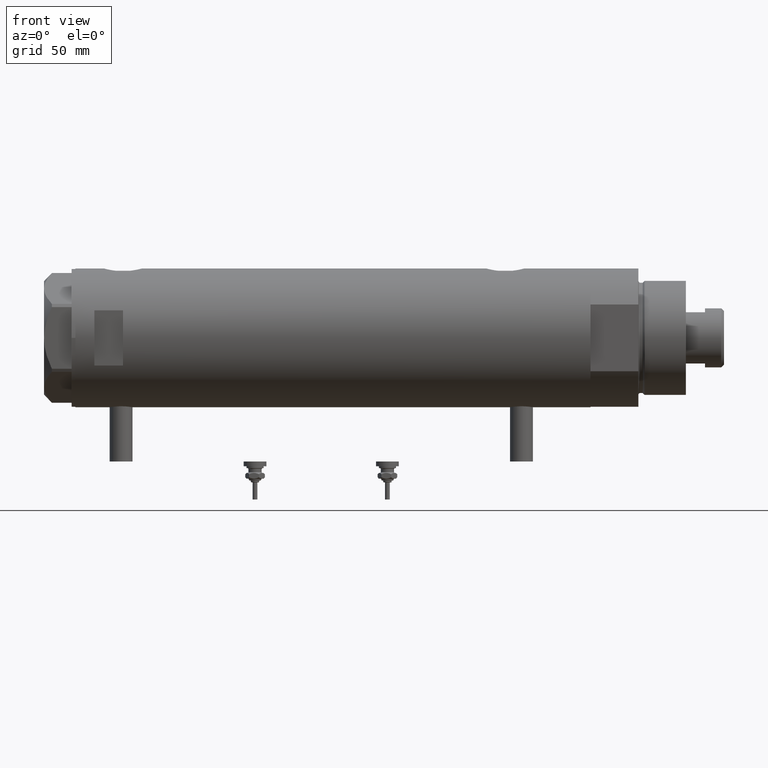
[diagram: clean part render]
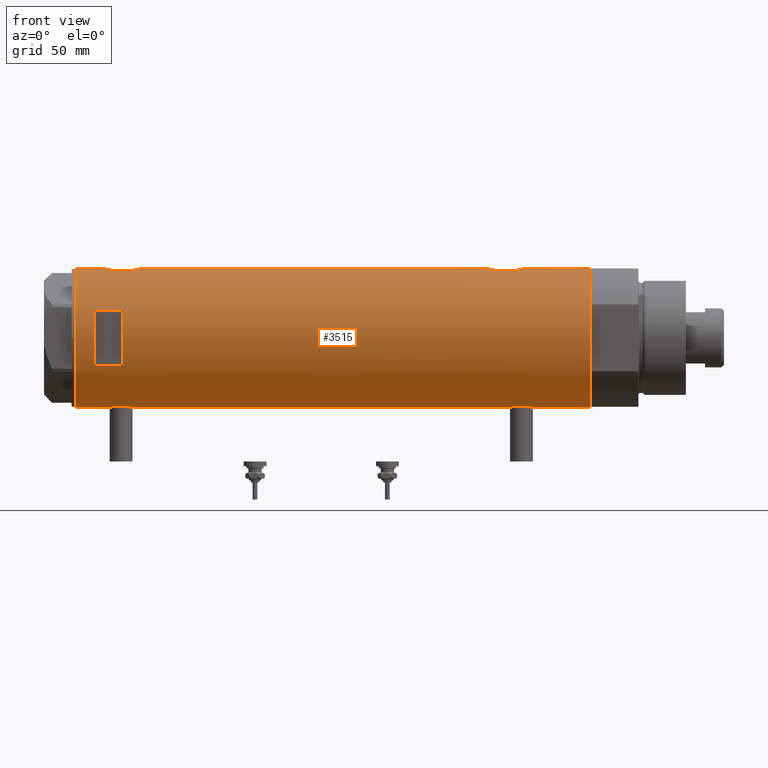
[diagram: same view with one face highlighted and labeled with its STEP entity id]
A machine part, front view. The second image highlights one B-rep face of the part: STEP entity #3515.
In plain terms, the highlighted cylindrical surface (partial cylindrical patch) has radius 36.5 mm, axis along (-1, -0, 0).
Its self-contained STEP definition (entity closure, byte-faithful):
#21 = DIRECTION ( 'NONE',  ( 0.000000000000000000, 0.000000000000000000, 1.000000000000000000 ) ) ;
#28 = CARTESIAN_POINT ( 'NONE',  ( 35.72583162417570435, -7.484316398521980496, -83.94957356280495731 ) ) ;
#29 = VERTEX_POINT ( 'NONE', #5354 ) ;
#84 = CARTESIAN_POINT ( 'NONE',  ( -36.40915499150419521, -2.580495338846545472, -104.7960501335547860 ) ) ;
#106 = ORIENTED_EDGE ( 'NONE', *, *, #3835, .F. ) ;
#107 = VERTEX_POINT ( 'NONE', #4036 ) ;
#108 = CARTESIAN_POINT ( 'NONE',  ( 36.41856252531823657, -2.482507212621166470, -100.2995651284649909 ) ) ;
#113 = CARTESIAN_POINT ( 'NONE',  ( -36.44454782745417276, -2.020757099930494682, -93.18214135579002289 ) ) ;
#117 = B_SPLINE_CURVE_WITH_KNOTS ( 'NONE', 3,
 ( #1401, #2845, #3241, #4687, #4619, #588, #3721, #2410, #3780, #3449, #4885, #256, #4390, #1679, #3006, #3935, #5762, #3042 ),
 .UNSPECIFIED., .F., .F.,
 ( 4, 2, 2, 2, 2, 2, 2, 2, 4 ),
 ( -0.01189883390545606531, -0.008924125429092034240, -0.008180448310001031675, -0.007436771190910029979, -0.005949416952728023983, -0.004462062714546017987, -0.002974708476364010257, -0.001487354238182005128, 1.734723475976807094E-18 ),
 .UNSPECIFIED. ) ;
#135 = CARTESIAN_POINT ( 'NONE',  ( 35.69273631926343882, -7.635692914629149008, -97.06200195651487661 ) ) ;
#139 = CARTESIAN_POINT ( 'NONE',  ( -36.36635911126388265, -3.125815113635437292, -104.5160560040790330 ) ) ;
#171 = CARTESIAN_POINT ( 'NONE',  ( -36.21356728133255842, -4.566014386638764577, -94.82737339235254126 ) ) ;
#228 = LINE ( 'NONE', #2200, #4568 ) ;
#256 = CARTESIAN_POINT ( 'NONE',  ( 36.29527920868844859, -3.886508670267145416, 101.1728372416913970 ) ) ;
#265 = CARTESIAN_POINT ( 'NONE',  ( -36.35061318816141096, -3.303361544904982239, 106.0903595805698245 ) ) ;
#286 = EDGE_CURVE ( 'NONE', #5786, #477, #2375, .T. ) ;
#333 = VERTEX_POINT ( 'NONE', #4878 ) ;
#355 = CARTESIAN_POINT ( 'NONE',  ( -36.26616882068471170, -4.135065845178865551, 116.1041505594009635 ) ) ;
#386 = CARTESIAN_POINT ( 'NONE',  ( -36.19666146462960654, -4.704890678739094945, 107.2657014048921553 ) ) ;
#395 = CARTESIAN_POINT ( 'NONE',  ( 36.18674680775578167, -4.776679548204626258, 119.1889231693124742 ) ) ;
#419 = CARTESIAN_POINT ( 'NONE',  ( 36.34247810649306132, -3.420510937483959513, -81.19013481598273074 ) ) ;
#426 = CARTESIAN_POINT ( 'NONE',  ( 36.00092304812866217, -6.029438422680412302, 118.3930815557365008 ) ) ;
#443 = CARTESIAN_POINT ( 'NONE',  ( -35.98855750525641639, -6.088954600884530777, 109.9756977384983543 ) ) ;
#449 = CARTESIAN_POINT ( 'NONE',  ( 35.29999999999999716, -9.282241108697837362, 114.1202150475476316 ) ) ;
#455 = CARTESIAN_POINT ( 'NONE',  ( 36.34247810649306132, -3.420510937483959513, 119.8098651840172693 ) ) ;
#463 = DIRECTION ( 'NONE',  ( 1.000000000000000000, 0.000000000000000000, 0.000000000000000000 ) ) ;
#470 = CARTESIAN_POINT ( 'NONE',  ( 0.000000000000000000, 0.000000000000000000, -135.4000000000000057 ) ) ;
#471 = VECTOR ( 'NONE', #2833, 1000.000000000000000 ) ;
#472 = VERTEX_POINT ( 'NONE', #1035 ) ;
#477 = VERTEX_POINT ( 'NONE', #2800 ) ;
#502 = CARTESIAN_POINT ( 'NONE',  ( -35.96087392089862789, -6.250243747806517369, -98.69082509223817112 ) ) ;
#528 = CARTESIAN_POINT ( 'NONE',  ( 35.83108131285856501, -6.958268797611358636, -97.78630783372824453 ) ) ;
#557 = CARTESIAN_POINT ( 'NONE',  ( 36.48960339336947101, -1.002724032967601708, -100.5622486597349621 ) ) ;
#563 = CARTESIAN_POINT ( 'NONE',  ( -36.50000000000001421, -0.4136690418839317762, -92.85000000000000853 ) ) ;
#572 = DIRECTION ( 'NONE',  ( 0.000000000000000000, 0.000000000000000000, 1.000000000000000000 ) ) ;
#584 = CARTESIAN_POINT ( 'NONE',  ( 35.79656810172926384, -7.133411935499478496, -97.61254878557674886 ) ) ;
#588 = CARTESIAN_POINT ( 'NONE',  ( 35.79656810172926384, -7.133411935499478496, 103.3874512144232511 ) ) ;
#590 = CARTESIAN_POINT ( 'NONE',  ( -35.96816095843705341, -6.208699946936198977, -99.92496377127785934 ) ) ;
#591 = EDGE_CURVE ( 'NONE', #5507, #1157, #3339, .T. ) ;
#611 = CARTESIAN_POINT ( 'NONE',  ( 36.12792682573228831, -5.214735277442335004, -99.14693117988699100 ) ) ;
#669 = EDGE_CURVE ( 'NONE', #107, #2053, #2174, .T. ) ;
#682 = CARTESIAN_POINT ( 'NONE',  ( -36.36635911126388265, -3.125815113635437292, 105.9839439959209955 ) ) ;
#742 = EDGE_CURVE ( 'NONE', #2053, #5880, #228, .T. ) ;
#791 = CARTESIAN_POINT ( 'NONE',  ( -36.50000000000000000, 1.603939656238031057E-15, -92.84999999999999432 ) ) ;
#808 = DIRECTION ( 'NONE',  ( 1.000000000000000000, 0.000000000000000000, 0.000000000000000000 ) ) ;
#818 = B_SPLINE_CURVE_WITH_KNOTS ( 'NONE', 3,
 ( #5213, #3819, #1522, #3390, #3355, #1108, #2945, #682, #265, #2510, #3519, #386, #2626, #3574, #2209, #4489, #1293, #4002, #443, #1263, #4457, #4535, #1236, #2701, #3126, #4915, #5426, #2157, #5375, #1742, #4085, #4976, #1799, #355, #5831, #2681, #5939, #3972, #4060, #4424, #5860, #3637, #866, #1684 ),
 .UNSPECIFIED., .F., .F.,
 ( 4, 2, 2, 2, 2, 2, 2, 2, 2, 2, 2, 2, 2, 2, 2, 2, 2, 2, 2, 2, 2, 4 ),
 ( 0.01957644481942643136, 0.02079966591703043266, 0.02202288701463443049, 0.02263449756343642941, 0.02324610811223842832, 0.02446932920984242615, 0.02569255030744642398, 0.02691577140505042529, 0.02752738195385242420, 0.02813899250265442659, 0.02936221360025846605, 0.03058543469786250205, 0.03119704524666452178, 0.03180865579546654498, 0.03303187689307057751, 0.03364348744187262152, 0.03425509799067465166, 0.03547831908827869807, 0.03670154018588274447, 0.03731315073468477461, 0.03792476128348679781, 0.03914798238109084422 ),
 .UNSPECIFIED. ) ;
#822 = ORIENTED_EDGE ( 'NONE', *, *, #2388, .T. ) ;
#847 = VERTEX_POINT ( 'NONE', #1312 ) ;
#866 = CARTESIAN_POINT ( 'NONE',  ( -36.50000000000001421, -0.4136690418839317762, 117.6500000000000341 ) ) ;
#878 = CARTESIAN_POINT ( 'NONE',  ( 35.39807338191549491, -8.909271871950329214, 115.0508038273278402 ) ) ;
#928 = CARTESIAN_POINT ( 'NONE',  ( -36.46417279006304568, -1.628689148039109247, -93.06246061306185879 ) ) ;
#956 = CARTESIAN_POINT ( 'NONE',  ( -35.98821803976956346, -6.090959022952117330, -97.68426116850579888 ) ) ;
#961 = CARTESIAN_POINT ( 'NONE',  ( 36.29582892817134621, -3.881628320031159873, -81.37065565465007921 ) ) ;
#964 = B_SPLINE_CURVE_WITH_KNOTS ( 'NONE', 3,
 ( #5150, #5181, #5091, #135, #4590, #584, #528, #2408, #2869, #611, #3810, #3718, #2436, #108, #3238, #557, #4197, #1911 ),
 .UNSPECIFIED., .F., .F.,
 ( 4, 2, 2, 2, 2, 2, 2, 2, 4 ),
 ( -0.01189883390545606531, -0.008924125429092034240, -0.008180448310001031675, -0.007436771190910029979, -0.005949416952728023983, -0.004462062714546017987, -0.002974708476364010257, -0.001487354238182005128, 1.734723475976807094E-18 ),
 .UNSPECIFIED. ) ;
#1000 = CARTESIAN_POINT ( 'NONE',  ( -36.50000000000000000, 4.469960816887838430E-15, -135.4000000000000057 ) ) ;
#1022 = CARTESIAN_POINT ( 'NONE',  ( -36.39558535855674393, -2.764807686268001774, -104.7089411854560979 ) ) ;
#1035 = CARTESIAN_POINT ( 'NONE',  ( 36.50000000000000000, 0.000000000000000000, 100.4000000000000057 ) ) ;
#1059 = DIRECTION ( 'NONE',  ( 0.000000000000000000, 0.000000000000000000, 1.000000000000000000 ) ) ;
#1072 = CARTESIAN_POINT ( 'NONE',  ( -14.49137674618942739, -33.50000000000000000, -135.4000000000000057 ) ) ;
#1074 = ORIENTED_EDGE ( 'NONE', *, *, #2399, .F. ) ;
#1108 = CARTESIAN_POINT ( 'NONE',  ( -36.40915499150419521, -2.580495338846545472, 105.7039498664452566 ) ) ;
#1157 = VERTEX_POINT ( 'NONE', #2195 ) ;
#1171 = VERTEX_POINT ( 'NONE', #2527 ) ;
#1176 = DIRECTION ( 'NONE',  ( 0.000000000000000000, 0.000000000000000000, 1.000000000000000000 ) ) ;
#1230 = VECTOR ( 'NONE', #3349, 1000.000000000000000 ) ;
#1236 = CARTESIAN_POINT ( 'NONE',  ( -35.96794010939611752, -6.209972807992079069, 112.2155554899135836 ) ) ;
#1263 = CARTESIAN_POINT ( 'NONE',  ( -35.96816095843705341, -6.208699946936198977, 110.5750362287220838 ) ) ;
#1279 = CARTESIAN_POINT ( 'NONE',  ( 36.50000000000000711, -0.4962708696651116913, 120.3999999999999915 ) ) ;
#1293 = CARTESIAN_POINT ( 'NONE',  ( -36.01675918113430441, -5.920026275461277798, 109.3856044348210759 ) ) ;
#1312 = CARTESIAN_POINT ( 'NONE',  ( -36.50000000000000000, 1.603939656238031057E-15, 117.6500000000000057 ) ) ;
#1332 = CARTESIAN_POINT ( 'NONE',  ( 36.48988302519020266, -0.9927202255321166957, 120.3632698941130172 ) ) ;
#1356 = ORIENTED_EDGE ( 'NONE', *, *, #3395, .F. ) ;
#1363 = CARTESIAN_POINT ( 'NONE',  ( 36.44931971524465553, -1.985988150549293341, 120.2136686053176220 ) ) ;
#1387 = LINE ( 'NONE', #2768, #3194 ) ;
#1401 = CARTESIAN_POINT ( 'NONE',  ( 35.29999999999999716, -9.282241108697837362, 106.6797849524523656 ) ) ;
#1406 = CARTESIAN_POINT ( 'NONE',  ( -36.09582946723050867, -5.421573071064194060, -102.2360827837048731 ) ) ;
#1435 = CARTESIAN_POINT ( 'NONE',  ( -36.26616882068471170, -4.135065845178865551, -94.39584944059907912 ) ) ;
#1475 = ORIENTED_EDGE ( 'NONE', *, *, #669, .F. ) ;
#1479 = VERTEX_POINT ( 'NONE', #1000 ) ;
#1482 = EDGE_CURVE ( 'NONE', #4134, #1740, #1507, .T. ) ;
#1494 = CARTESIAN_POINT ( 'NONE',  ( -36.06543684817881257, -5.617774235967367247, -96.33045552028301017 ) ) ;
#1507 = LINE ( 'NONE', #4729, #471 ) ;
#1522 = CARTESIAN_POINT ( 'NONE',  ( -36.49315367594273596, -0.8144497809045447845, 105.1896021444524507 ) ) ;
#1573 = LINE ( 'NONE', #2000, #5465 ) ;
#1676 = DIRECTION ( 'NONE',  ( 1.000000000000000000, 0.000000000000000000, 0.000000000000000000 ) ) ;
#1679 = CARTESIAN_POINT ( 'NONE',  ( 36.41856252531823657, -2.482507212621166470, 100.7004348715349380 ) ) ;
#1684 = CARTESIAN_POINT ( 'NONE',  ( -36.50000000000000000, 1.603939656238031057E-15, 117.6500000000000057 ) ) ;
#1718 = EDGE_LOOP ( 'NONE', ( #3052, #5144, #1074, #3863 ) ) ;
#1729 = CARTESIAN_POINT ( 'NONE',  ( 36.50000000000000000, 4.344614706140975428E-19, 120.3999999999999915 ) ) ;
#1740 = VERTEX_POINT ( 'NONE', #449 ) ;
#1742 = CARTESIAN_POINT ( 'NONE',  ( -36.14410773716529235, -5.085921866747754372, 115.0383587842047035 ) ) ;
#1771 = CARTESIAN_POINT ( 'NONE',  ( 36.50000000000000000, 0.000000000000000000, -135.4000000000000057 ) ) ;
#1773 = CARTESIAN_POINT ( 'NONE',  ( 35.39807338191549491, -8.909271871950329214, -85.94919617267213141 ) ) ;
#1782 = CARTESIAN_POINT ( 'NONE',  ( 35.29999999999999716, -9.282241108697837362, -94.32021504754762020 ) ) ;
#1799 = CARTESIAN_POINT ( 'NONE',  ( -36.21356728133255842, -4.566014386638764577, 115.6726266076474587 ) ) ;
#1911 = CARTESIAN_POINT ( 'NONE',  ( 36.50000000000000000, 0.000000000000000000, -100.5999999999999801 ) ) ;
#1932 = CARTESIAN_POINT ( 'NONE',  ( -36.50000000000000000, 4.469960816887838430E-15, -135.4000000000000057 ) ) ;
#1950 = CARTESIAN_POINT ( 'NONE',  ( -35.96794010939611752, -6.209972807992079069, -98.28444451008645899 ) ) ;
#1973 = ORIENTED_EDGE ( 'NONE', *, *, #5110, .F. ) ;
#1988 = CIRCLE ( 'NONE', #2110, 36.50000000000000000 ) ;
#2000 = CARTESIAN_POINT ( 'NONE',  ( 36.50000000000000000, 0.000000000000000000, -135.4000000000000057 ) ) ;
#2041 = VECTOR ( 'NONE', #2899, 1000.000000000000000 ) ;
#2053 = VERTEX_POINT ( 'NONE', #791 ) ;
#2077 = VECTOR ( 'NONE', #2109, 1000.000000000000000 ) ;
#2101 = ORIENTED_EDGE ( 'NONE', *, *, #2413, .T. ) ;
#2109 = DIRECTION ( 'NONE',  ( 0.000000000000000000, 0.000000000000000000, 1.000000000000000000 ) ) ;
#2110 = AXIS2_PLACEMENT_3D ( 'NONE', #5725, #2976, #1676 ) ;
#2157 = CARTESIAN_POINT ( 'NONE',  ( -36.06543684817881257, -5.617774235967367247, 114.1695444797170182 ) ) ;
#2174 = B_SPLINE_CURVE_WITH_KNOTS ( 'NONE', 3,
 ( #4268, #2445, #3816, #3300, #5550, #84, #1022, #139, #5156, #3724, #3786, #2849, #2761, #1406, #2874, #3243, #5185, #4691, #5096, #590, #4596, #502, #1950, #956, #4203, #2414, #5127, #1494, #2321, #5666, #4624, #4720, #171, #1435, #3208, #5065, #4143, #5582, #113, #928, #3268, #4657, #563, #2391 ),
 .UNSPECIFIED., .F., .F.,
 ( 4, 2, 2, 2, 2, 2, 2, 2, 2, 2, 2, 2, 2, 2, 2, 2, 2, 2, 2, 2, 2, 4 ),
 ( 0.01957644481942643136, 0.02079966591703043266, 0.02202288701463443049, 0.02263449756343642941, 0.02324610811223842832, 0.02446932920984242615, 0.02569255030744642398, 0.02691577140505042529, 0.02752738195385242420, 0.02813899250265442659, 0.02936221360025846605, 0.03058543469786250205, 0.03119704524666452178, 0.03180865579546654498, 0.03303187689307057751, 0.03364348744187262152, 0.03425509799067465166, 0.03547831908827869807, 0.03670154018588274447, 0.03731315073468477461, 0.03792476128348679781, 0.03914798238109084422 ),
 .UNSPECIFIED. ) ;
#2181 = VERTEX_POINT ( 'NONE', #5398 ) ;
#2195 = CARTESIAN_POINT ( 'NONE',  ( 36.50000000000000000, 0.000000000000000000, 135.4000000000000057 ) ) ;
#2199 = CARTESIAN_POINT ( 'NONE',  ( 36.50000000000000000, 4.344614706140975428E-19, -80.59999999999999432 ) ) ;
#2200 = CARTESIAN_POINT ( 'NONE',  ( -36.50000000000000000, 4.469960816887838430E-15, -135.4000000000000057 ) ) ;
#2209 = CARTESIAN_POINT ( 'NONE',  ( -36.06605150775667568, -5.613853192123348101, 108.6223431172745961 ) ) ;
#2215 = CARTESIAN_POINT ( 'NONE',  ( 35.52323553852023963, -8.411295122831250026, -85.10247607048908947 ) ) ;
#2223 = DIRECTION ( 'NONE',  ( 0.000000000000000000, 0.000000000000000000, 1.000000000000000000 ) ) ;
#2238 = CARTESIAN_POINT ( 'NONE',  ( 36.18674680775578167, -4.776679548204626258, -81.81107683068751157 ) ) ;
#2242 = CARTESIAN_POINT ( 'NONE',  ( 35.93373217836897737, -6.415110096330620237, 118.0870426635508892 ) ) ;
#2271 = VECTOR ( 'NONE', #1059, 1000.000000000000000 ) ;
#2294 = CARTESIAN_POINT ( 'NONE',  ( 35.93373217836897737, -6.415110096330620237, -82.91295733644905397 ) ) ;
#2321 = CARTESIAN_POINT ( 'NONE',  ( -36.09514898390870030, -5.426114745500164815, -95.97161347053859970 ) ) ;
#2334 = AXIS2_PLACEMENT_3D ( 'NONE', #3642, #4928, #808 ) ;
#2344 = EDGE_CURVE ( 'NONE', #4571, #3491, #964, .T. ) ;
#2371 = DIRECTION ( 'NONE',  ( 0.000000000000000000, 0.000000000000000000, 1.000000000000000000 ) ) ;
#2375 = LINE ( 'NONE', #4190, #2077 ) ;
#2388 = EDGE_CURVE ( 'NONE', #4571, #1171, #3777, .T. ) ;
#2391 = CARTESIAN_POINT ( 'NONE',  ( -36.50000000000000000, 1.603939656238031057E-15, -92.84999999999999432 ) ) ;
#2399 = EDGE_CURVE ( 'NONE', #477, #333, #1988, .T. ) ;
#2408 = CARTESIAN_POINT ( 'NONE',  ( 35.93363298843768661, -6.415574104180976178, -98.28651472888890339 ) ) ;
#2410 = CARTESIAN_POINT ( 'NONE',  ( 35.93363298843768661, -6.415574104180976178, 102.7134852711111108 ) ) ;
#2413 = EDGE_CURVE ( 'NONE', #4793, #472, #1573, .T. ) ;
#2414 = CARTESIAN_POINT ( 'NONE',  ( -36.01639592019625979, -5.922235714778421034, -97.09203197573086186 ) ) ;
#2432 = AXIS2_PLACEMENT_3D ( 'NONE', #3600, #2678, #463 ) ;
#2436 = CARTESIAN_POINT ( 'NONE',  ( 36.34184199234172041, -3.427106516421255744, -100.0074091368003337 ) ) ;
#2445 = CARTESIAN_POINT ( 'NONE',  ( -36.49999999999999289, -0.4082012689449562859, -105.3499999999999943 ) ) ;
#2510 = CARTESIAN_POINT ( 'NONE',  ( -36.30176144752229561, -3.814344296723636951, 106.4319829804974518 ) ) ;
#2527 = CARTESIAN_POINT ( 'NONE',  ( 35.29999999999999716, -9.282241108697837362, -86.87978495245235422 ) ) ;
#2564 = DIRECTION ( 'NONE',  ( 0.000000000000000000, 0.000000000000000000, 1.000000000000000000 ) ) ;
#2626 = CARTESIAN_POINT ( 'NONE',  ( -36.16096637594732499, -4.968588355849258953, 107.5866550718223920 ) ) ;
#2636 = B_SPLINE_CURVE_WITH_KNOTS ( 'NONE', 3,
 ( #5070, #4570, #5433, #3135, #3699, #419, #961, #5035, #2238, #3183, #4069, #5916, #2294, #4496, #28, #2215, #1773, #3612 ),
 .UNSPECIFIED., .F., .F.,
 ( 4, 2, 2, 2, 2, 2, 2, 2, 4 ),
 ( 0.01190956515753145012, 0.01339852714138290227, 0.01488748912523435441, 0.01637645110908580656, 0.01712093210101153090, 0.01786541309293725871, 0.01935437507678870739, 0.02084333706064015260, 0.02382126102834301526 ),
 .UNSPECIFIED. ) ;
#2649 = AXIS2_PLACEMENT_3D ( 'NONE', #470, #21, #3019 ) ;
#2655 = CYLINDRICAL_SURFACE ( 'NONE', #2432, 36.50000000000000000 ) ;
#2657 = ORIENTED_EDGE ( 'NONE', *, *, #5926, .T. ) ;
#2678 = DIRECTION ( 'NONE',  ( 0.000000000000000000, 0.000000000000000000, 1.000000000000000000 ) ) ;
#2681 = CARTESIAN_POINT ( 'NONE',  ( -36.36656776002988778, -3.137002187003158582, 116.8213640927363315 ) ) ;
#2688 = CARTESIAN_POINT ( 'NONE',  ( 36.21540437201188922, -4.554727782332258279, 119.3059762908862353 ) ) ;
#2701 = CARTESIAN_POINT ( 'NONE',  ( -35.98821803976956346, -6.090959022952117330, 112.8157388314941869 ) ) ;
#2715 = CARTESIAN_POINT ( 'NONE',  ( 36.50000000000000000, 0.000000000000000000, -135.4000000000000057 ) ) ;
#2761 = CARTESIAN_POINT ( 'NONE',  ( -36.16096637594732499, -4.968588355849258953, -102.9133449281775938 ) ) ;
#2768 = CARTESIAN_POINT ( 'NONE',  ( -36.50000000000000000, 4.469960816887838430E-15, -135.4000000000000057 ) ) ;
#2800 = CARTESIAN_POINT ( 'NONE',  ( 14.49137674618942739, -33.50000000000000000, 125.3999999999999773 ) ) ;
#2833 = DIRECTION ( 'NONE',  ( 0.000000000000000000, 0.000000000000000000, 1.000000000000000000 ) ) ;
#2845 = CARTESIAN_POINT ( 'NONE',  ( 35.39794035667548400, -8.909777761736840773, 105.7504584091054767 ) ) ;
#2849 = CARTESIAN_POINT ( 'NONE',  ( -36.19666146462960654, -4.704890678739094945, -103.2342985951078447 ) ) ;
#2869 = CARTESIAN_POINT ( 'NONE',  ( 36.00068527486601511, -6.030855700422090848, -98.59201327127351533 ) ) ;
#2874 = CARTESIAN_POINT ( 'NONE',  ( -36.06605150775667568, -5.613853192123348101, -101.8776568827254465 ) ) ;
#2899 = DIRECTION ( 'NONE',  ( -0.000000000000000000, -0.000000000000000000, -1.000000000000000000 ) ) ;
#2937 = CARTESIAN_POINT ( 'NONE',  ( 36.50000000000000000, 0.000000000000000000, -100.5999999999999801 ) ) ;
#2945 = CARTESIAN_POINT ( 'NONE',  ( -36.39558535855674393, -2.764807686268001774, 105.7910588145438879 ) ) ;
#2976 = DIRECTION ( 'NONE',  ( -0.000000000000000000, 0.000000000000000000, -1.000000000000000000 ) ) ;
#2980 = FACE_OUTER_BOUND ( 'NONE', #4004, .T. ) ;
#3006 = CARTESIAN_POINT ( 'NONE',  ( 36.44881677724178104, -1.995085670027227032, 100.5881965463053263 ) ) ;
#3019 = DIRECTION ( 'NONE',  ( 1.000000000000000000, 0.000000000000000000, 0.000000000000000000 ) ) ;
#3042 = CARTESIAN_POINT ( 'NONE',  ( 36.50000000000000000, 0.000000000000000000, 100.4000000000000057 ) ) ;
#3052 = ORIENTED_EDGE ( 'NONE', *, *, #3999, .F. ) ;
#3074 = CARTESIAN_POINT ( 'NONE',  ( -36.50000000000000000, 4.469960493350315609E-15, 105.1499999999999915 ) ) ;
#3079 = EDGE_CURVE ( 'NONE', #4793, #1171, #2636, .T. ) ;
#3112 = CARTESIAN_POINT ( 'NONE',  ( 36.29582892817134621, -3.881628320031159873, 119.6293443453498782 ) ) ;
#3126 = CARTESIAN_POINT ( 'NONE',  ( -35.99659093586380010, -6.041447834568799635, 113.0142241201482420 ) ) ;
#3135 = CARTESIAN_POINT ( 'NONE',  ( 36.44931971524465553, -1.985988150549293341, -80.78633139468232116 ) ) ;
#3162 = CARTESIAN_POINT ( 'NONE',  ( 35.72583162417570435, -7.484316398521980496, 117.0504264371949716 ) ) ;
#3183 = CARTESIAN_POINT ( 'NONE',  ( 36.12724769814495573, -5.207618053557754756, -82.05935879511534381 ) ) ;
#3194 = VECTOR ( 'NONE', #1176, 1000.000000000000000 ) ;
#3208 = CARTESIAN_POINT ( 'NONE',  ( -36.30107494031872051, -3.820993528321233068, -94.13693846463692694 ) ) ;
#3238 = CARTESIAN_POINT ( 'NONE',  ( 36.44881677724178104, -1.995085670027227032, -100.4118034536946169 ) ) ;
#3241 = CARTESIAN_POINT ( 'NONE',  ( 35.52320828895289395, -8.411622242316134646, 104.9022713405538667 ) ) ;
#3243 = CARTESIAN_POINT ( 'NONE',  ( -36.02823773219768810, -5.849994928883552880, -101.3095510148563960 ) ) ;
#3268 = CARTESIAN_POINT ( 'NONE',  ( -36.47262891311153510, -1.427622242603855396, -93.01175370788300256 ) ) ;
#3282 = AXIS2_PLACEMENT_3D ( 'NONE', #4698, #572, #3792 ) ;
#3300 = CARTESIAN_POINT ( 'NONE',  ( -36.46614432713124643, -1.622933015999963313, -105.1496659738684798 ) ) ;
#3339 = LINE ( 'NONE', #5196, #2271 ) ;
#3349 = DIRECTION ( 'NONE',  ( 0.000000000000000000, 0.000000000000000000, 1.000000000000000000 ) ) ;
#3355 = CARTESIAN_POINT ( 'NONE',  ( -36.44621655743049615, -2.016281777336074832, 105.4701702330088438 ) ) ;
#3390 = CARTESIAN_POINT ( 'NONE',  ( -36.46614432713124643, -1.622933015999963313, 105.3503340261315202 ) ) ;
#3395 = EDGE_CURVE ( 'NONE', #4134, #472, #117, .T. ) ;
#3449 = CARTESIAN_POINT ( 'NONE',  ( 36.12792682573228831, -5.214735277442335004, 101.8530688201130090 ) ) ;
#3491 = VERTEX_POINT ( 'NONE', #2937 ) ;
#3515 = ADVANCED_FACE ( 'NONE', ( #2980, #4819 ), #2655, .T. ) ;
#3519 = CARTESIAN_POINT ( 'NONE',  ( -36.26692673949090562, -4.128477002029503851, 106.6900001256783526 ) ) ;
#3574 = CARTESIAN_POINT ( 'NONE',  ( -36.09582946723050867, -5.421573071064194060, 108.2639172162951553 ) ) ;
#3590 = CARTESIAN_POINT ( 'NONE',  ( 36.12724769814495573, -5.207618053557754756, 118.9406412048846846 ) ) ;
#3600 = CARTESIAN_POINT ( 'NONE',  ( 0.000000000000000000, 0.000000000000000000, -135.4000000000000057 ) ) ;
#3612 = CARTESIAN_POINT ( 'NONE',  ( 35.29999999999999716, -9.282241108697837362, -86.87978495245235422 ) ) ;
#3626 = ORIENTED_EDGE ( 'NONE', *, *, #5329, .F. ) ;
#3637 = CARTESIAN_POINT ( 'NONE',  ( -36.49297138689434661, -0.8222528563518530786, 117.6093311205343781 ) ) ;
#3642 = CARTESIAN_POINT ( 'NONE',  ( 0.000000000000000000, 0.000000000000000000, 135.4000000000000057 ) ) ;
#3699 = CARTESIAN_POINT ( 'NONE',  ( 36.41918031349423757, -2.473644131148923009, -80.89811654536808305 ) ) ;
#3718 = CARTESIAN_POINT ( 'NONE',  ( 36.29527920868844859, -3.886508670267145416, -99.82716275830860297 ) ) ;
#3721 = CARTESIAN_POINT ( 'NONE',  ( 35.83108131285856501, -6.958268797611358636, 103.2136921662717697 ) ) ;
#3724 = CARTESIAN_POINT ( 'NONE',  ( -36.30176144752229561, -3.814344296723636951, -104.0680170195025624 ) ) ;
#3777 = LINE ( 'NONE', #4714, #1230 ) ;
#3780 = CARTESIAN_POINT ( 'NONE',  ( 36.00068527486601511, -6.030855700422090848, 102.4079867287264705 ) ) ;
#3786 = CARTESIAN_POINT ( 'NONE',  ( -36.26692673949090562, -4.128477002029503851, -103.8099998743216474 ) ) ;
#3792 = DIRECTION ( 'NONE',  ( -1.000000000000000000, 0.000000000000000000, 0.000000000000000000 ) ) ;
#3802 = EDGE_CURVE ( 'NONE', #5085, #3491, #5912, .T. ) ;
#3810 = CARTESIAN_POINT ( 'NONE',  ( 36.18850502651835654, -4.779575967213809840, -99.39779152890149305 ) ) ;
#3816 = CARTESIAN_POINT ( 'NONE',  ( -36.49315367594273596, -0.8144497809045447845, -105.3103978555474924 ) ) ;
#3819 = CARTESIAN_POINT ( 'NONE',  ( -36.49999999999999289, -0.4082012689449562859, 105.1500000000000057 ) ) ;
#3835 = EDGE_CURVE ( 'NONE', #1479, #107, #4310, .T. ) ;
#3847 = ORIENTED_EDGE ( 'NONE', *, *, #1482, .T. ) ;
#3863 = ORIENTED_EDGE ( 'NONE', *, *, #286, .F. ) ;
#3935 = CARTESIAN_POINT ( 'NONE',  ( 36.48960339336947101, -1.002724032967601708, 100.4377513402650379 ) ) ;
#3972 = CARTESIAN_POINT ( 'NONE',  ( -36.43335814606993495, -2.212659578761325463, 117.2487639916951139 ) ) ;
#3999 = EDGE_CURVE ( 'NONE', #29, #5786, #4841, .T. ) ;
#4002 = CARTESIAN_POINT ( 'NONE',  ( -35.99695583620881933, -6.039273428153905776, 109.7777555501224214 ) ) ;
#4004 = EDGE_LOOP ( 'NONE', ( #106, #2657, #4791, #4820, #822, #5857, #2101, #1356, #3847, #1973, #4195, #5291, #3626, #5723, #4255, #1475 ) ) ;
#4036 = CARTESIAN_POINT ( 'NONE',  ( -36.50000000000000000, 4.469960493350315609E-15, -105.3499999999999943 ) ) ;
#4060 = CARTESIAN_POINT ( 'NONE',  ( -36.44454782745417276, -2.020757099930494682, 117.3178586442099913 ) ) ;
#4069 = CARTESIAN_POINT ( 'NONE',  ( 36.09633718678917802, -5.417295330713078449, -82.19085132654787174 ) ) ;
#4085 = CARTESIAN_POINT ( 'NONE',  ( -36.16125812922425098, -4.962923794285024393, 115.2044608591076269 ) ) ;
#4089 = DIRECTION ( 'NONE',  ( 0.000000000000000000, 0.000000000000000000, 1.000000000000000000 ) ) ;
#4134 = VERTEX_POINT ( 'NONE', #4984 ) ;
#4143 = CARTESIAN_POINT ( 'NONE',  ( -36.39621039793029666, -2.776267550998806843, -93.48569246893222839 ) ) ;
#4165 = EDGE_CURVE ( 'NONE', #2181, #1157, #5512, .T. ) ;
#4190 = CARTESIAN_POINT ( 'NONE',  ( 14.49137674618942739, -33.50000000000000000, -135.4000000000000057 ) ) ;
#4195 = ORIENTED_EDGE ( 'NONE', *, *, #591, .T. ) ;
#4197 = CARTESIAN_POINT ( 'NONE',  ( 36.50000000000000711, -0.5031001875915692700, -100.5999999999999943 ) ) ;
#4203 = CARTESIAN_POINT ( 'NONE',  ( -35.99659093586380010, -6.041447834568799635, -97.48577587985174375 ) ) ;
#4255 = ORIENTED_EDGE ( 'NONE', *, *, #742, .F. ) ;
#4268 = CARTESIAN_POINT ( 'NONE',  ( -36.50000000000000000, 4.469960493350315609E-15, -105.3499999999999943 ) ) ;
#4310 = LINE ( 'NONE', #1932, #5415 ) ;
#4390 = CARTESIAN_POINT ( 'NONE',  ( 36.34184199234172041, -3.427106516421255744, 100.9925908631996663 ) ) ;
#4424 = CARTESIAN_POINT ( 'NONE',  ( -36.46417279006304568, -1.628689148039109247, 117.4375393869382123 ) ) ;
#4450 = EDGE_CURVE ( 'NONE', #333, #29, #5206, .T. ) ;
#4457 = CARTESIAN_POINT ( 'NONE',  ( -35.96095902952617251, -6.249754054240900913, 110.9834123457953012 ) ) ;
#4489 = CARTESIAN_POINT ( 'NONE',  ( -36.02823773219768810, -5.849994928883552880, 109.1904489851435613 ) ) ;
#4496 = CARTESIAN_POINT ( 'NONE',  ( 35.79638309643555516, -7.141827709208434349, -83.58298073030449871 ) ) ;
#4501 = CARTESIAN_POINT ( 'NONE',  ( 35.29999999999999716, -9.282241108697837362, 114.1202150475476316 ) ) ;
#4521 = CARTESIAN_POINT ( 'NONE',  ( 36.09633718678917802, -5.417295330713078449, 118.8091486734521141 ) ) ;
#4535 = CARTESIAN_POINT ( 'NONE',  ( -35.96087392089862789, -6.250243747806517369, 111.8091749077618289 ) ) ;
#4540 = CARTESIAN_POINT ( 'NONE',  ( 36.50000000000000000, 4.344614706140975428E-19, 120.3999999999999915 ) ) ;
#4568 = VECTOR ( 'NONE', #2223, 1000.000000000000000 ) ;
#4570 = CARTESIAN_POINT ( 'NONE',  ( 36.50000000000000711, -0.4962708696651116913, -80.60000000000000853 ) ) ;
#4571 = VERTEX_POINT ( 'NONE', #1782 ) ;
#4578 = CARTESIAN_POINT ( 'NONE',  ( 35.79638309643555516, -7.141827709208434349, 117.4170192696954445 ) ) ;
#4590 = CARTESIAN_POINT ( 'NONE',  ( 35.72742963626381396, -7.471989379615407323, -97.25062260412774151 ) ) ;
#4596 = CARTESIAN_POINT ( 'NONE',  ( -35.96095902952617251, -6.249754054240900913, -99.51658765420468455 ) ) ;
#4619 = CARTESIAN_POINT ( 'NONE',  ( 35.72742963626381396, -7.471989379615407323, 103.7493773958722585 ) ) ;
#4624 = CARTESIAN_POINT ( 'NONE',  ( -36.16125812922425098, -4.962923794285024393, -95.29553914089241573 ) ) ;
#4657 = CARTESIAN_POINT ( 'NONE',  ( -36.49297138689434661, -0.8222528563518530786, -92.89066887946567874 ) ) ;
#4687 = CARTESIAN_POINT ( 'NONE',  ( 35.69273631926343882, -7.635692914629149008, 103.9379980434851234 ) ) ;
#4691 = CARTESIAN_POINT ( 'NONE',  ( -35.99695583620881933, -6.039273428153905776, -100.7222444498775502 ) ) ;
#4698 = CARTESIAN_POINT ( 'NONE',  ( 0.000000000000000000, 0.000000000000000000, 110.3999999999999773 ) ) ;
#4714 = CARTESIAN_POINT ( 'NONE',  ( 35.29999999999999716, -9.282241108697837362, -135.4000000000000057 ) ) ;
#4720 = CARTESIAN_POINT ( 'NONE',  ( -36.19599073318030236, -4.702920041824403263, -94.97846168323421523 ) ) ;
#4729 = CARTESIAN_POINT ( 'NONE',  ( 35.29999999999999716, -9.282241108697837362, -135.4000000000000057 ) ) ;
#4791 = ORIENTED_EDGE ( 'NONE', *, *, #3802, .T. ) ;
#4793 = VERTEX_POINT ( 'NONE', #2199 ) ;
#4819 = FACE_BOUND ( 'NONE', #1718, .T. ) ;
#4820 = ORIENTED_EDGE ( 'NONE', *, *, #2344, .F. ) ;
#4841 = CIRCLE ( 'NONE', #3282, 36.50000000000000000 ) ;
#4878 = CARTESIAN_POINT ( 'NONE',  ( -14.49137674618942739, -33.50000000000000000, 125.3999999999999773 ) ) ;
#4885 = CARTESIAN_POINT ( 'NONE',  ( 36.18850502651835654, -4.779575967213809840, 101.6022084710984501 ) ) ;
#4915 = CARTESIAN_POINT ( 'NONE',  ( -36.01639592019625979, -5.922235714778421034, 113.4079680242691239 ) ) ;
#4928 = DIRECTION ( 'NONE',  ( 0.000000000000000000, 0.000000000000000000, 1.000000000000000000 ) ) ;
#4976 = CARTESIAN_POINT ( 'NONE',  ( -36.19599073318030236, -4.702920041824403263, 115.5215383167658132 ) ) ;
#4984 = CARTESIAN_POINT ( 'NONE',  ( 35.29999999999999716, -9.282241108697837362, 106.6797849524523656 ) ) ;
#5035 = CARTESIAN_POINT ( 'NONE',  ( 36.21540437201188922, -4.554727782332258279, -81.69402370911372202 ) ) ;
#5045 = CIRCLE ( 'NONE', #2649, 36.50000000000000000 ) ;
#5065 = CARTESIAN_POINT ( 'NONE',  ( -36.36656776002988778, -3.137002187003158582, -93.67863590726369694 ) ) ;
#5070 = CARTESIAN_POINT ( 'NONE',  ( 36.50000000000000000, 4.344614706140975428E-19, -80.59999999999999432 ) ) ;
#5085 = VERTEX_POINT ( 'NONE', #2715 ) ;
#5091 = CARTESIAN_POINT ( 'NONE',  ( 35.52320828895289395, -8.411622242316134646, -96.09772865944610487 ) ) ;
#5096 = CARTESIAN_POINT ( 'NONE',  ( -35.98855750525641639, -6.088954600884530777, -100.5243022615016883 ) ) ;
#5110 = EDGE_CURVE ( 'NONE', #5507, #1740, #5564, .T. ) ;
#5127 = CARTESIAN_POINT ( 'NONE',  ( -36.02782481185206365, -5.852531070448506512, -96.89722991047811718 ) ) ;
#5144 = ORIENTED_EDGE ( 'NONE', *, *, #4450, .F. ) ;
#5150 = CARTESIAN_POINT ( 'NONE',  ( 35.29999999999999716, -9.282241108697837362, -94.32021504754762020 ) ) ;
#5156 = CARTESIAN_POINT ( 'NONE',  ( -36.35061318816141096, -3.303361544904982239, -104.4096404194302039 ) ) ;
#5181 = CARTESIAN_POINT ( 'NONE',  ( 35.39794035667548400, -8.909777761736840773, -95.24954159089452332 ) ) ;
#5185 = CARTESIAN_POINT ( 'NONE',  ( -36.01675918113430441, -5.920026275461277798, -101.1143955651789383 ) ) ;
#5196 = CARTESIAN_POINT ( 'NONE',  ( 36.50000000000000000, 0.000000000000000000, -135.4000000000000057 ) ) ;
#5206 = LINE ( 'NONE', #1072, #2041 ) ;
#5213 = CARTESIAN_POINT ( 'NONE',  ( -36.50000000000000000, 4.469960493350315609E-15, 105.1499999999999915 ) ) ;
#5291 = ORIENTED_EDGE ( 'NONE', *, *, #4165, .F. ) ;
#5313 = CARTESIAN_POINT ( 'NONE',  ( 14.49137674618942739, -33.50000000000000000, 110.3999999999999773 ) ) ;
#5329 = EDGE_CURVE ( 'NONE', #847, #2181, #1387, .T. ) ;
#5354 = CARTESIAN_POINT ( 'NONE',  ( -14.49137674618942739, -33.50000000000000000, 110.3999999999999773 ) ) ;
#5375 = CARTESIAN_POINT ( 'NONE',  ( -36.09514898390870030, -5.426114745500164815, 114.5283865294613719 ) ) ;
#5398 = CARTESIAN_POINT ( 'NONE',  ( -36.50000000000000000, 4.469960816887838430E-15, 135.4000000000000057 ) ) ;
#5415 = VECTOR ( 'NONE', #2371, 1000.000000000000000 ) ;
#5426 = CARTESIAN_POINT ( 'NONE',  ( -36.02782481185206365, -5.852531070448506512, 113.6027700895219112 ) ) ;
#5433 = CARTESIAN_POINT ( 'NONE',  ( 36.48988302519020266, -0.9927202255321166957, -80.63673010588695433 ) ) ;
#5465 = VECTOR ( 'NONE', #2564, 1000.000000000000000 ) ;
#5507 = VERTEX_POINT ( 'NONE', #4540 ) ;
#5512 = CIRCLE ( 'NONE', #2334, 36.50000000000000000 ) ;
#5550 = CARTESIAN_POINT ( 'NONE',  ( -36.44621655743049615, -2.016281777336074832, -105.0298297669911562 ) ) ;
#5564 = B_SPLINE_CURVE_WITH_KNOTS ( 'NONE', 3,
 ( #1729, #1279, #1332, #1363, #5896, #455, #3112, #2688, #395, #3590, #4521, #426, #2242, #4578, #3162, #5922, #878, #4501 ),
 .UNSPECIFIED., .F., .F.,
 ( 4, 2, 2, 2, 2, 2, 2, 2, 4 ),
 ( 0.01190956515753145012, 0.01339852714138290227, 0.01488748912523435441, 0.01637645110908580656, 0.01712093210101153090, 0.01786541309293725871, 0.01935437507678870739, 0.02084333706064015260, 0.02382126102834301526 ),
 .UNSPECIFIED. ) ;
#5582 = CARTESIAN_POINT ( 'NONE',  ( -36.43335814606993495, -2.212659578761325463, -93.25123600830492876 ) ) ;
#5666 = CARTESIAN_POINT ( 'NONE',  ( -36.14410773716529235, -5.085921866747754372, -95.46164121579526807 ) ) ;
#5723 = ORIENTED_EDGE ( 'NONE', *, *, #5829, .F. ) ;
#5725 = CARTESIAN_POINT ( 'NONE',  ( 0.000000000000000000, 0.000000000000000000, 125.3999999999999773 ) ) ;
#5762 = CARTESIAN_POINT ( 'NONE',  ( 36.50000000000000711, -0.5031001875915692700, 100.4000000000000341 ) ) ;
#5786 = VERTEX_POINT ( 'NONE', #5313 ) ;
#5813 = VECTOR ( 'NONE', #4089, 1000.000000000000000 ) ;
#5829 = EDGE_CURVE ( 'NONE', #5880, #847, #818, .T. ) ;
#5831 = CARTESIAN_POINT ( 'NONE',  ( -36.30107494031872051, -3.820993528321233068, 116.3630615353631015 ) ) ;
#5857 = ORIENTED_EDGE ( 'NONE', *, *, #3079, .F. ) ;
#5860 = CARTESIAN_POINT ( 'NONE',  ( -36.47262891311153510, -1.427622242603855396, 117.4882462921170259 ) ) ;
#5880 = VERTEX_POINT ( 'NONE', #3074 ) ;
#5896 = CARTESIAN_POINT ( 'NONE',  ( 36.41918031349423757, -2.473644131148923009, 120.1018834546319027 ) ) ;
#5912 = LINE ( 'NONE', #1771, #5813 ) ;
#5916 = CARTESIAN_POINT ( 'NONE',  ( 36.00092304812866217, -6.029438422680412302, -82.60691844426345654 ) ) ;
#5922 = CARTESIAN_POINT ( 'NONE',  ( 35.52323553852023963, -8.411295122831250026, 115.8975239295108253 ) ) ;
#5926 = EDGE_CURVE ( 'NONE', #1479, #5085, #5045, .T. ) ;
#5939 = CARTESIAN_POINT ( 'NONE',  ( -36.39621039793029666, -2.776267550998806843, 117.0143075310677716 ) ) ;